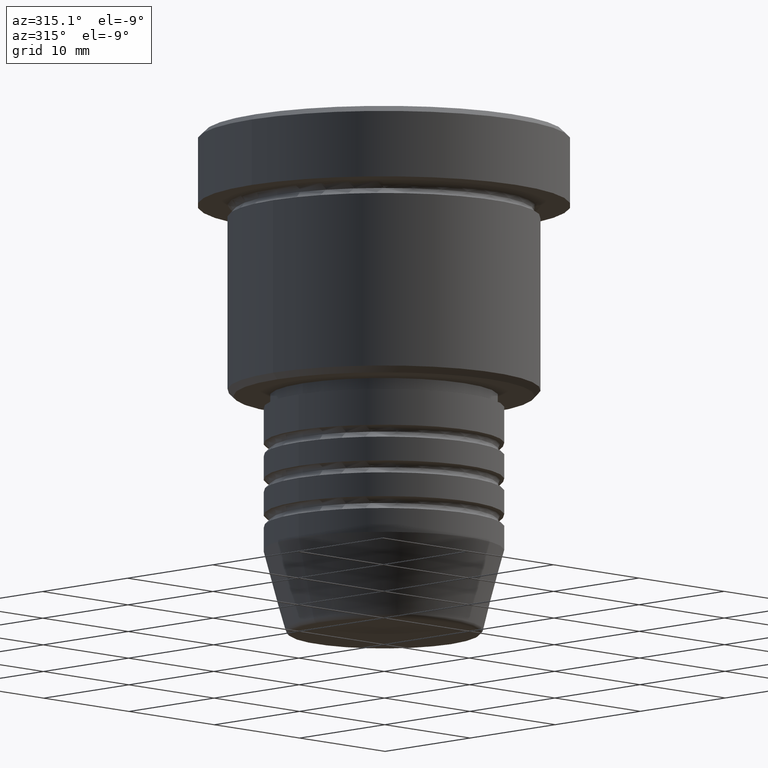
[diagram: clean part render]
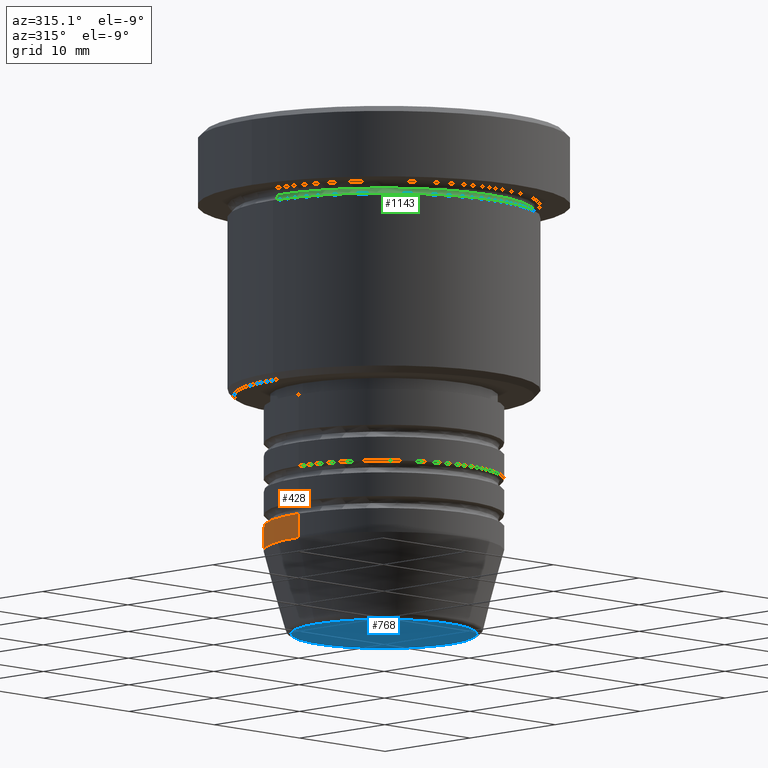
[diagram: same view with three faces highlighted in distinct colors, each labeled with its STEP entity id]
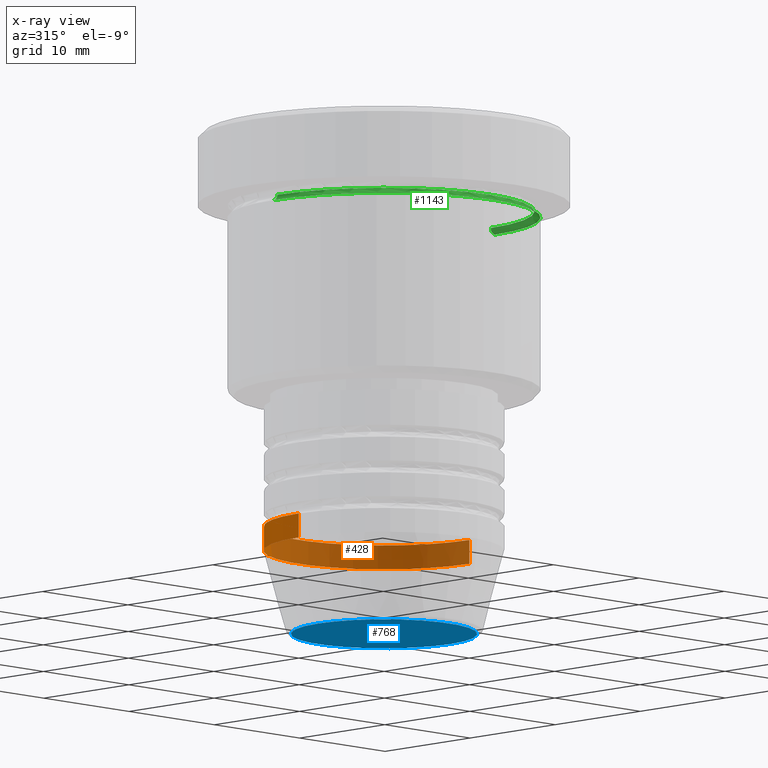
[diagram: x-ray of the same camera — body ghosted, the three highlighted faces saturated]
A machine part, auxiliary view with three faces highlighted in distinct colors.
The next image is the same camera in x-ray (body ghosted, the three faces saturated) — at least one of them is partly hidden behind the body in this view.
Their STEP definitions:

[orange] entity #428 — the highlighted cylindrical surface (partial cylindrical patch) has radius 10 mm, axis along (-0, -0, 1).
#12 = VERTEX_POINT ( 'NONE', #385 ) ;
#67 = CARTESIAN_POINT ( 'NONE',  ( 0.000000000000000000, 0.000000000000000000, -32.99999999999999289 ) ) ;
#86 = AXIS2_PLACEMENT_3D ( 'NONE', #67, #504, #441 ) ;
#154 = ORIENTED_EDGE ( 'NONE', *, *, #593, .F. ) ;
#158 = CARTESIAN_POINT ( 'NONE',  ( -10.00000000000000000, 1.224646799147353256E-15, -32.99999999999999289 ) ) ;
#210 = DIRECTION ( 'NONE',  ( 1.000000000000000000, 0.000000000000000000, 0.000000000000000000 ) ) ;
#243 = CARTESIAN_POINT ( 'NONE',  ( 0.000000000000000000, 0.000000000000000000, -34.99999999999999289 ) ) ;
#283 = EDGE_CURVE ( 'NONE', #12, #418, #1003, .T. ) ;
#301 = AXIS2_PLACEMENT_3D ( 'NONE', #243, #1147, #1101 ) ;
#385 = CARTESIAN_POINT ( 'NONE',  ( 10.00000000000000000, 0.000000000000000000, -34.99999999999999289 ) ) ;
#391 = EDGE_CURVE ( 'NONE', #12, #843, #1025, .T. ) ;
#395 = VECTOR ( 'NONE', #481, 1000.000000000000000 ) ;
#418 = VERTEX_POINT ( 'NONE', #1041 ) ;
#428 = ADVANCED_FACE ( 'NONE', ( #670 ), #1029, .T. ) ;
#439 = VECTOR ( 'NONE', #530, 1000.000000000000000 ) ;
#441 = DIRECTION ( 'NONE',  ( 1.000000000000000000, 0.000000000000000000, 0.000000000000000000 ) ) ;
#445 = EDGE_LOOP ( 'NONE', ( #902, #555, #154, #786 ) ) ;
#481 = DIRECTION ( 'NONE',  ( -0.000000000000000000, -0.000000000000000000, 1.000000000000000000 ) ) ;
#485 = DIRECTION ( 'NONE',  ( -0.000000000000000000, -0.000000000000000000, 1.000000000000000000 ) ) ;
#504 = DIRECTION ( 'NONE',  ( -0.000000000000000000, -0.000000000000000000, 1.000000000000000000 ) ) ;
#530 = DIRECTION ( 'NONE',  ( -0.000000000000000000, -0.000000000000000000, 1.000000000000000000 ) ) ;
#555 = ORIENTED_EDGE ( 'NONE', *, *, #1087, .T. ) ;
#593 = EDGE_CURVE ( 'NONE', #843, #950, #607, .T. ) ;
#607 = CIRCLE ( 'NONE', #86, 10.00000000000000000 ) ;
#663 = CARTESIAN_POINT ( 'NONE',  ( 0.000000000000000000, 0.000000000000000000, 0.000000000000000000 ) ) ;
#670 = FACE_OUTER_BOUND ( 'NONE', #445, .T. ) ;
#786 = ORIENTED_EDGE ( 'NONE', *, *, #391, .F. ) ;
#843 = VERTEX_POINT ( 'NONE', #961 ) ;
#902 = ORIENTED_EDGE ( 'NONE', *, *, #283, .T. ) ;
#950 = VERTEX_POINT ( 'NONE', #158 ) ;
#951 = LINE ( 'NONE', #1134, #439 ) ;
#961 = CARTESIAN_POINT ( 'NONE',  ( 10.00000000000000000, 0.000000000000000000, -32.99999999999999289 ) ) ;
#1003 = CIRCLE ( 'NONE', #301, 10.00000000000000000 ) ;
#1025 = LINE ( 'NONE', #1111, #395 ) ;
#1029 = CYLINDRICAL_SURFACE ( 'NONE', #1037, 10.00000000000000000 ) ;
#1037 = AXIS2_PLACEMENT_3D ( 'NONE', #663, #485, #210 ) ;
#1041 = CARTESIAN_POINT ( 'NONE',  ( -10.00000000000000000, 1.224646799147353256E-15, -34.99999999999999289 ) ) ;
#1087 = EDGE_CURVE ( 'NONE', #418, #950, #951, .T. ) ;
#1101 = DIRECTION ( 'NONE',  ( 1.000000000000000000, 0.000000000000000000, 0.000000000000000000 ) ) ;
#1111 = CARTESIAN_POINT ( 'NONE',  ( 10.00000000000000000, 0.000000000000000000, 0.000000000000000000 ) ) ;
#1134 = CARTESIAN_POINT ( 'NONE',  ( -10.00000000000000000, 1.224646799147353256E-15, 0.000000000000000000 ) ) ;
#1147 = DIRECTION ( 'NONE',  ( -0.000000000000000000, -0.000000000000000000, 1.000000000000000000 ) ) ;

[blue] entity #768 — the highlighted planar face has unit normal (0, -0, 1).
#26 = CARTESIAN_POINT ( 'NONE',  ( 0.000000000000000000, 0.000000000000000000, -41.99999999999999289 ) ) ;
#51 = CARTESIAN_POINT ( 'NONE',  ( 0.000000000000000000, 0.000000000000000000, -41.99999999999999289 ) ) ;
#81 = ORIENTED_EDGE ( 'NONE', *, *, #884, .T. ) ;
#125 = CIRCLE ( 'NONE', #416, 7.740692158992656502 ) ;
#140 = AXIS2_PLACEMENT_3D ( 'NONE', #752, #1027, #939 ) ;
#208 = EDGE_CURVE ( 'NONE', #970, #451, #700, .T. ) ;
#238 = CARTESIAN_POINT ( 'NONE',  ( -7.740692158992656502, 9.775343368540039135E-16, -41.99999999999999289 ) ) ;
#398 = DIRECTION ( 'NONE',  ( 0.000000000000000000, -0.000000000000000000, 1.000000000000000000 ) ) ;
#416 = AXIS2_PLACEMENT_3D ( 'NONE', #51, #895, #785 ) ;
#451 = VERTEX_POINT ( 'NONE', #953 ) ;
#480 = EDGE_LOOP ( 'NONE', ( #81, #653 ) ) ;
#528 = AXIS2_PLACEMENT_3D ( 'NONE', #26, #398, #1121 ) ;
#597 = PLANE ( 'NONE',  #528 ) ;
#653 = ORIENTED_EDGE ( 'NONE', *, *, #208, .T. ) ;
#667 = FACE_OUTER_BOUND ( 'NONE', #480, .T. ) ;
#700 = CIRCLE ( 'NONE', #140, 7.740692158992656502 ) ;
#752 = CARTESIAN_POINT ( 'NONE',  ( 0.000000000000000000, 0.000000000000000000, -41.99999999999999289 ) ) ;
#768 = ADVANCED_FACE ( 'NONE', ( #667 ), #597, .F. ) ;
#785 = DIRECTION ( 'NONE',  ( 1.000000000000000000, 0.000000000000000000, 0.000000000000000000 ) ) ;
#884 = EDGE_CURVE ( 'NONE', #451, #970, #125, .T. ) ;
#895 = DIRECTION ( 'NONE',  ( 0.000000000000000000, 0.000000000000000000, -1.000000000000000000 ) ) ;
#939 = DIRECTION ( 'NONE',  ( 1.000000000000000000, 0.000000000000000000, 0.000000000000000000 ) ) ;
#953 = CARTESIAN_POINT ( 'NONE',  ( 7.740692158992656502, 0.000000000000000000, -41.99999999999999289 ) ) ;
#970 = VERTEX_POINT ( 'NONE', #238 ) ;
#1027 = DIRECTION ( 'NONE',  ( 0.000000000000000000, 0.000000000000000000, -1.000000000000000000 ) ) ;
#1121 = DIRECTION ( 'NONE',  ( 1.000000000000000000, 0.000000000000000000, 0.000000000000000000 ) ) ;

[green] entity #1143 — the highlighted toroidal blend (fillet) surface has major radius 13 mm and minor (blend) radius 0.5 mm.
#127 = CARTESIAN_POINT ( 'NONE',  ( -12.49999999999999822, 1.561424668912875308E-15, -6.499999999999995559 ) ) ;
#139 = DIRECTION ( 'NONE',  ( 0.000000000000000000, -1.000000000000000000, 0.000000000000000000 ) ) ;
#145 = CARTESIAN_POINT ( 'NONE',  ( 0.000000000000000000, 0.000000000000000000, -6.499999999999995559 ) ) ;
#149 = CARTESIAN_POINT ( 'NONE',  ( -13.00000000000000000, 1.592040838891559095E-15, -6.499999999999995559 ) ) ;
#153 = CARTESIAN_POINT ( 'NONE',  ( 12.49999999999999822, 0.000000000000000000, -6.499999999999995559 ) ) ;
#167 = AXIS2_PLACEMENT_3D ( 'NONE', #149, #347, #256 ) ;
#170 = FACE_OUTER_BOUND ( 'NONE', #464, .T. ) ;
#250 = DIRECTION ( 'NONE',  ( 1.000000000000000000, 0.000000000000000000, 0.000000000000000000 ) ) ;
#256 = DIRECTION ( 'NONE',  ( -1.000000000000000000, 1.224646799147353454E-16, 0.000000000000000000 ) ) ;
#337 = DIRECTION ( 'NONE',  ( 1.000000000000000000, 0.000000000000000000, 0.000000000000000000 ) ) ;
#345 = ORIENTED_EDGE ( 'NONE', *, *, #1095, .T. ) ;
#347 = DIRECTION ( 'NONE',  ( 1.224646799147353207E-16, 1.000000000000000000, 0.000000000000000000 ) ) ;
#420 = EDGE_CURVE ( 'NONE', #882, #1149, #567, .T. ) ;
#443 = CIRCLE ( 'NONE', #815, 0.5000000000000004441 ) ;
#464 = EDGE_LOOP ( 'NONE', ( #932, #345, #1051, #755 ) ) ;
#540 = EDGE_CURVE ( 'NONE', #1032, #808, #644, .T. ) ;
#546 = AXIS2_PLACEMENT_3D ( 'NONE', #674, #1033, #770 ) ;
#567 = CIRCLE ( 'NONE', #546, 13.00000000000000000 ) ;
#602 = CARTESIAN_POINT ( 'NONE',  ( 13.00000000000000000, 0.000000000000000000, -6.499999999999995559 ) ) ;
#613 = CARTESIAN_POINT ( 'NONE',  ( -13.00000000000000000, 1.592040838891559095E-15, -6.999999999999995559 ) ) ;
#633 = DIRECTION ( 'NONE',  ( 0.000000000000000000, 0.000000000000000000, -1.000000000000000000 ) ) ;
#644 = CIRCLE ( 'NONE', #1116, 12.49999999999999822 ) ;
#674 = CARTESIAN_POINT ( 'NONE',  ( 0.000000000000000000, 0.000000000000000000, -6.999999999999995559 ) ) ;
#686 = CIRCLE ( 'NONE', #167, 0.5000000000000004441 ) ;
#755 = ORIENTED_EDGE ( 'NONE', *, *, #977, .F. ) ;
#770 = DIRECTION ( 'NONE',  ( 1.000000000000000000, 0.000000000000000000, 0.000000000000000000 ) ) ;
#808 = VERTEX_POINT ( 'NONE', #153 ) ;
#815 = AXIS2_PLACEMENT_3D ( 'NONE', #602, #139, #633 ) ;
#832 = AXIS2_PLACEMENT_3D ( 'NONE', #1142, #1071, #337 ) ;
#880 = DIRECTION ( 'NONE',  ( -0.000000000000000000, -0.000000000000000000, 1.000000000000000000 ) ) ;
#882 = VERTEX_POINT ( 'NONE', #613 ) ;
#932 = ORIENTED_EDGE ( 'NONE', *, *, #540, .F. ) ;
#968 = TOROIDAL_SURFACE ( 'NONE', #832, 13.00000000000000000, 0.5000000000000000000 ) ;
#977 = EDGE_CURVE ( 'NONE', #808, #1149, #443, .T. ) ;
#978 = CARTESIAN_POINT ( 'NONE',  ( 13.00000000000000000, 0.000000000000000000, -6.999999999999995559 ) ) ;
#1032 = VERTEX_POINT ( 'NONE', #127 ) ;
#1033 = DIRECTION ( 'NONE',  ( -0.000000000000000000, -0.000000000000000000, 1.000000000000000000 ) ) ;
#1051 = ORIENTED_EDGE ( 'NONE', *, *, #420, .T. ) ;
#1071 = DIRECTION ( 'NONE',  ( -0.000000000000000000, -0.000000000000000000, 1.000000000000000000 ) ) ;
#1095 = EDGE_CURVE ( 'NONE', #1032, #882, #686, .T. ) ;
#1116 = AXIS2_PLACEMENT_3D ( 'NONE', #145, #880, #250 ) ;
#1142 = CARTESIAN_POINT ( 'NONE',  ( 0.000000000000000000, 0.000000000000000000, -6.499999999999995559 ) ) ;
#1143 = ADVANCED_FACE ( 'NONE', ( #170 ), #968, .F. ) ;
#1149 = VERTEX_POINT ( 'NONE', #978 ) ;